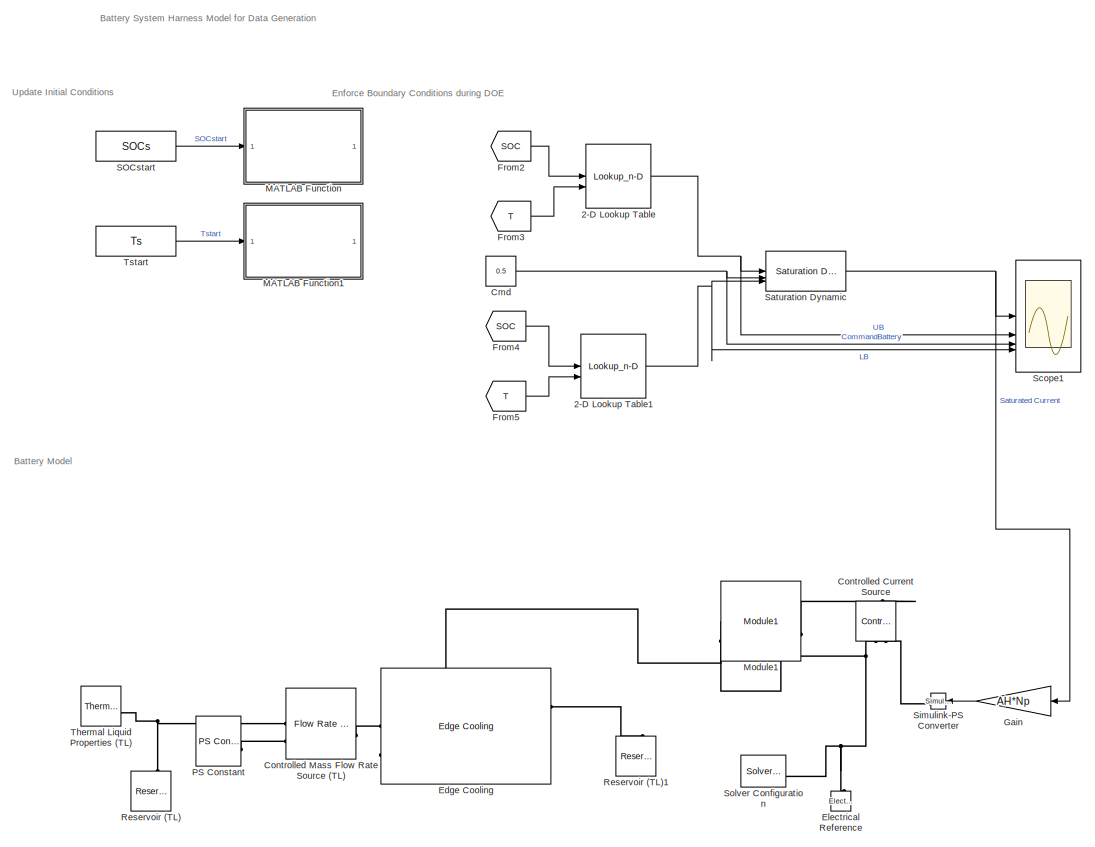
[diagram: root canvas - part 1/2, full width, top band]
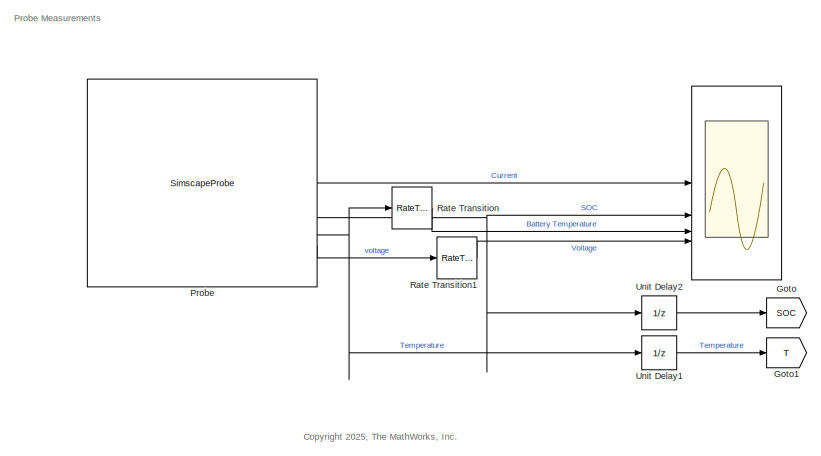
[diagram: root canvas - part 2/2, full width, bottom band]
MODEL slx_f9b44d62d39a
KIND model
CONFIG AbsTol = auto
CONFIG EnableMultiTasking = off
CONFIG FixedStep = 0.1
CONFIG InitFcn = load ModelData.mat;
CONFIG MaxStep = 1
CONFIG MinStep = auto
CONFIG RelTol = 1e-3
CONFIG SampleTimeConstraint = Unconstrained
CONFIG SolverName = VariableStepAuto
CONFIG StartTime = 0.0
CONFIG StopTime = 3000
WORKSPACE source: mxarray member
WORKSPACE SOCs1 = 0.5
BLOCK [Scope]  
  Floating = off
  NumInputPorts = 4
  ScopeSpecificationString = Simulink.scopes.TimeScopeBlockCfg('CurrentConfiguration', extmgr.ConfigurationSet(extmgr.Configuration('Core','General UI',true,'FigureColor',[0.129411764705882 0.129411764705882 0.129411764705882]),extmgr.Configuration('Core','Source UI',true),extmgr.Configuration('Sources','WiredSimulink',true),extmgr.Configuration('Visuals','Time Domain',true,'SerializedDisplays',{struct('MinYLimReal','44.00000...<+4190ch>
BLOCK [Lookup_n-D] 2-D Lookup Table
  BreakpointsForDimension1 = SOC_bkpts'
  BreakpointsForDimension2 = T_bkpts
  InputPortMap = u0,u1
  InternalRulePriority = Speed
  RndMeth = Simplest
  Table = CurrUb_LUT
BLOCK [Lookup_n-D] 2-D Lookup Table1
  BreakpointsForDimension1 = SOC_bkpts'
  BreakpointsForDimension2 = T_bkpts
  InputPortMap = u0,u1
  InternalRulePriority = Speed
  RndMeth = Simplest
  Table = CurrLb_LUT
BLOCK [Constant] Cmd
  SampleTime = 0.1
  Value = 0.5
BLOCK [Reference] Controlled Current Source  REF=fl_lib/Electrical/Electrical Sources/Controlled Current
Source
  NameLocation = right
  SourceBlock = fl_lib/Electrical/Electrical Sources/Controlled Current\nSource
  SourceType = Controlled Current\nSource
BLOCK [Reference] Controlled Mass Flow Rate Source (TL)  REF=fl_lib/Thermal Liquid/Sources/Flow Rate Source
(TL)
  SourceBlock = fl_lib/Thermal Liquid/Sources/Flow Rate Source\n(TL)
  SourceType = Flow Rate Source\n(TL)
BLOCK [Reference] Edge Cooling  REF=batt_lib/Thermal/Edge Cooling
  SourceBlock = batt_lib/Thermal/Edge Cooling
  SourceType = Edge Cooling
BLOCK [Reference] Electrical Reference  REF=fl_lib/Electrical/Electrical Elements/Electrical Reference
  NameLocation = right
  SourceBlock = fl_lib/Electrical/Electrical Elements/Electrical Reference
  SourceType = Electrical Reference
BLOCK [From] From2
  GotoTag = SOC
BLOCK [From] From3
  GotoTag = T
BLOCK [From] From4
  GotoTag = SOC
BLOCK [From] From5
  GotoTag = T
BLOCK [Gain] Gain
  Gain = AH*Np
BLOCK [Goto] Goto
  GotoTag = SOC
BLOCK [Goto] Goto1
  GotoTag = T
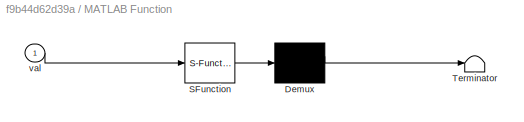
BLOCK [SubSystem] MATLAB Function
  ErrorFcn = Stateflow.Translate.translate
  PermitHierarchicalResolution = ExplicitOnly
  SFBlockType = MATLAB Function
  TreatAsAtomicUnit = on
BLOCK [Demux] MATLAB Function/ Demux 
  Outputs = 1
BLOCK [S-Function] MATLAB Function/ SFunction 
  EnableBusSupport = on
  FunctionName = sf_sfun
  PortCounts = [1 1]
  SFcnIsStateOwnerBlock = off
  SFunctionDeploymentMode = off
  Tag = Stateflow S-Function 2
BLOCK [Terminator] MATLAB Function/ Terminator 
BLOCK [Inport] MATLAB Function/val
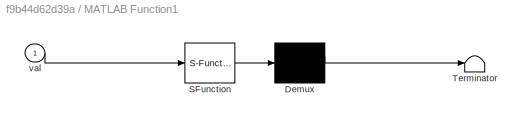
BLOCK [SubSystem] MATLAB Function1
  ErrorFcn = Stateflow.Translate.translate
  PermitHierarchicalResolution = ExplicitOnly
  SFBlockType = MATLAB Function
  TreatAsAtomicUnit = on
BLOCK [Demux] MATLAB Function1/ Demux 
  Outputs = 1
BLOCK [S-Function] MATLAB Function1/ SFunction 
  EnableBusSupport = on
  FunctionName = sf_sfun
  PortCounts = [1 1]
  SFcnIsStateOwnerBlock = off
  SFunctionDeploymentMode = off
  Tag = Stateflow S-Function 1
BLOCK [Terminator] MATLAB Function1/ Terminator 
BLOCK [Inport] MATLAB Function1/val
BLOCK [Reference] Module1  REF=moduleExample_lib/Module1
  SourceBlock = moduleExample_lib/Module1
  SourceType = Module1
BLOCK [Reference] PS Constant  REF=fl_lib/Physical Signals/Sources/PS Constant
  SourceBlock = fl_lib/Physical Signals/Sources/PS Constant
  SourceType = PS Constant
BLOCK [SimscapeProbe] Probe
  BoundBlock = 440
  Variables = {iCellModel, socCellModel, temperatureCellModel, vCellModel}
BLOCK [RateTransition] Rate Transition
  InitialCondition = SOCs
  OutPortSampleTime = 0.1
BLOCK [RateTransition] Rate Transition1
  InitialCondition = Ts
  OutPortSampleTime = 0.1
BLOCK [Reference] Reservoir (TL)  REF=fl_lib/Thermal Liquid/Elements/Reservoir (TL)
  NameLocation = right
  SourceBlock = fl_lib/Thermal Liquid/Elements/Reservoir (TL)
  SourceType = Reservoir (TL)
BLOCK [Reference] Reservoir (TL)1  REF=fl_lib/Thermal Liquid/Elements/Reservoir (TL)
  NameLocation = right
  SourceBlock = fl_lib/Thermal Liquid/Elements/Reservoir (TL)
  SourceType = Reservoir (TL)
BLOCK [Constant] SOCstart
  SampleTime = 0.1
  Value = SOCs
  VectorParams1D = off
BLOCK [Reference] Saturation Dynamic  REF=simulink/Discontinuities/Saturation
Dynamic
  SourceBlock = simulink/Discontinuities/Saturation\nDynamic
  SourceType = Saturation Dynamic
BLOCK [Scope] Scope1
  Floating = off
  NumInputPorts = 4
  ScopeSpecificationString = Simulink.scopes.TimeScopeBlockCfg('CurrentConfiguration', extmgr.ConfigurationSet(extmgr.Configuration('Core','General UI',true,'DisplayFullSourceName',false,'ShowMainToolbar',true),extmgr.Configuration('Sources','WiredSimulink',true,'DataLogging',false,'DataLoggingVariableName','ScopeData1','DataLoggingLimitDataPoints',false,'DataLoggingMaxPoints','5000','DataLoggingDecimateData',false,'DataLoggi...<+1998ch>
BLOCK [Reference] Simulink-PS Converter  REF=nesl_utility/Simulink-PS
Converter
  NameLocation = top
  SourceBlock = nesl_utility/Simulink-PS\nConverter
  SourceType = Simulink-PS\nConverter
BLOCK [Reference] Solver Configuration  REF=nesl_utility/Solver
Configuration
  SourceBlock = nesl_utility/Solver\nConfiguration
  SourceType = Solver\nConfiguration
BLOCK [Reference] Thermal Liquid Properties (TL)  REF=SimscapeFluids_lib/Thermal Liquid/Utilities/Thermal Liquid
Properties (TL)
  SourceBlock = SimscapeFluids_lib/Thermal Liquid/Utilities/Thermal Liquid\nProperties (TL)
  SourceType = Thermal Liquid\nProperties (TL)
BLOCK [Constant] Tstart
  SampleTime = 0.1
  Value = Ts
  VectorParams1D = off
BLOCK [UnitDelay] Unit Delay1
  HasFrameUpgradeWarning = on
  InitialCondition = s(1,3)
  SampleTime = -1
BLOCK [UnitDelay] Unit Delay2
  HasFrameUpgradeWarning = on
  InitialCondition = s(1,2)
  SampleTime = -1
ANNOTATION (root): Battery System Harness Model for Data Generation
ANNOTATION (root): <copyright redacted>
ANNOTATION (root): Battery Model
ANNOTATION (root): Enforce Boundary Conditions during DOE
ANNOTATION (root): Probe Measurements
ANNOTATION (root): Update Initial Conditions
NET 2-D Lookup Table1:1 -> Saturation Dynamic:3, Scope1:4
NET 2-D Lookup Table:1 -> Saturation Dynamic:1, Scope1:2
NET Cmd:1 -> Saturation Dynamic:2, Scope1:3
LINE From2:1 -> 2-D Lookup Table:1
LINE From3:1 -> 2-D Lookup Table:2
LINE From4:1 -> 2-D Lookup Table1:1
LINE From5:1 -> 2-D Lookup Table1:2
LINE Gain:1 -> Simulink-PS Converter:1
LINE Probe:1 ->  :1
NET Probe:2 ->  :2, Unit Delay2:1
NET Probe:3 -> Rate Transition:1, Unit Delay1:1
LINE Probe:4 -> Rate Transition1:1
LINE Rate Transition1:1 ->  :4
LINE Rate Transition:1 ->  :3
LINE SOCstart:1 -> MATLAB Function:1
NET Saturation Dynamic:1 -> Gain:1, Scope1:1
LINE Tstart:1 -> MATLAB Function1:1
LINE Unit Delay1:1 -> Goto1:1
LINE Unit Delay2:1 -> Goto:1
PLINE Controlled Current Source:LConn1 -- Module1:LConn1
PLINE Controlled Current Source:RConn1 -- Simulink-PS Converter:RConn1
PNET net1: Controlled Current Source:RConn2 -- Electrical Reference:LConn1 -- Module1:RConn1 -- Solver Configuration:RConn1
PNET net2: Controlled Mass Flow Rate Source (TL):LConn1 -- Reservoir (TL):LConn1 -- Thermal Liquid Properties (TL):RConn1
PLINE Controlled Mass Flow Rate Source (TL):LConn2 -- PS Constant:RConn1
PLINE Controlled Mass Flow Rate Source (TL):RConn1 -- Edge Cooling:LConn1
PLINE Edge Cooling:LConn2 -- Module1:RConn2
PLINE Edge Cooling:RConn1 -- Reservoir (TL)1:LConn1
note: NET lines group one-source signal fan-out (src -> all destinations, sorted); 1:1 wires keep LINE; PNET lines group multi-terminal physical nets as a canonical sorted terminal list (undirected conserving connections); 2-terminal nets keep the pairwise PLINE form
CHART MATLAB Function states=1 transitions=1
  STATE_LABEL 'eML_blk_kernel()'
  STATE_LABEL "SCRIPT:\nfunction updateInitCond(val)\nassignin('base', 'SOCs', val);\n\n"
CHART MATLAB Function1 states=1 transitions=1
  STATE_LABEL 'eML_blk_kernel()'
  STATE_LABEL "SCRIPT:\nfunction updateInitCond(val)\nassignin('base', 'Ts', val);\n\n"
CHART  states=0 transitions=0
CHART  states=0 transitions=0
